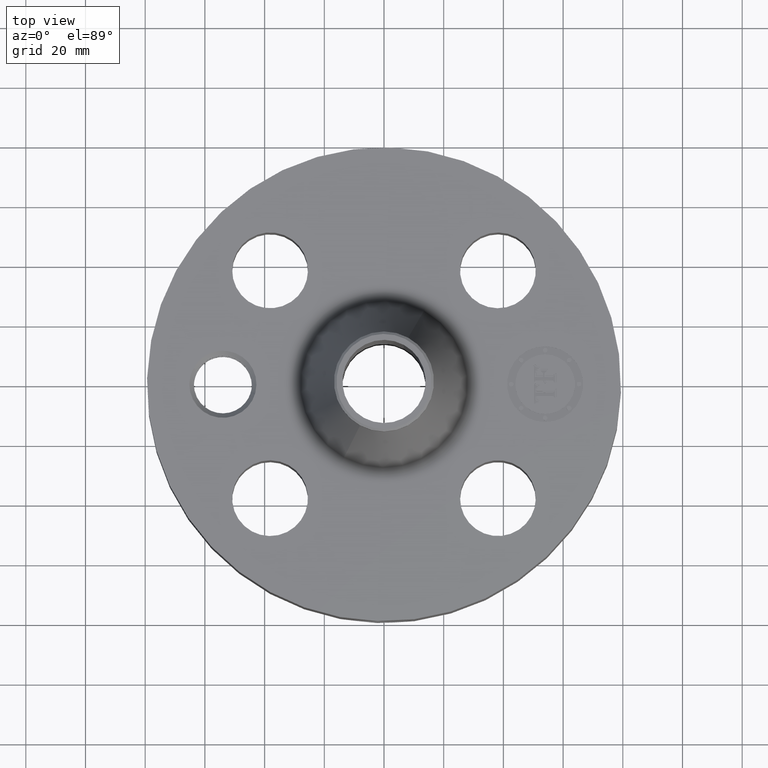
[diagram: clean part render]
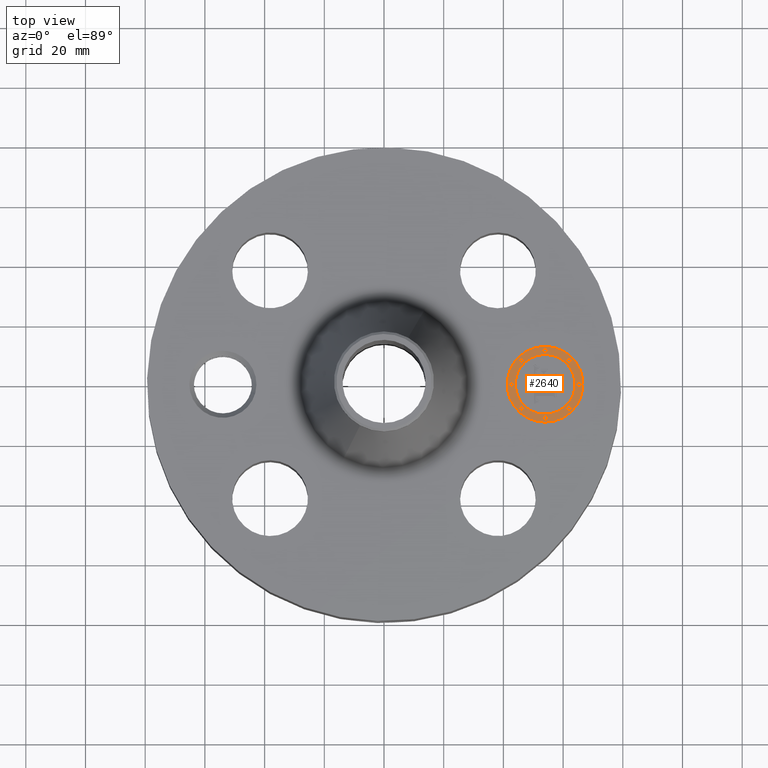
[diagram: same view with one face highlighted and labeled with its STEP entity id]
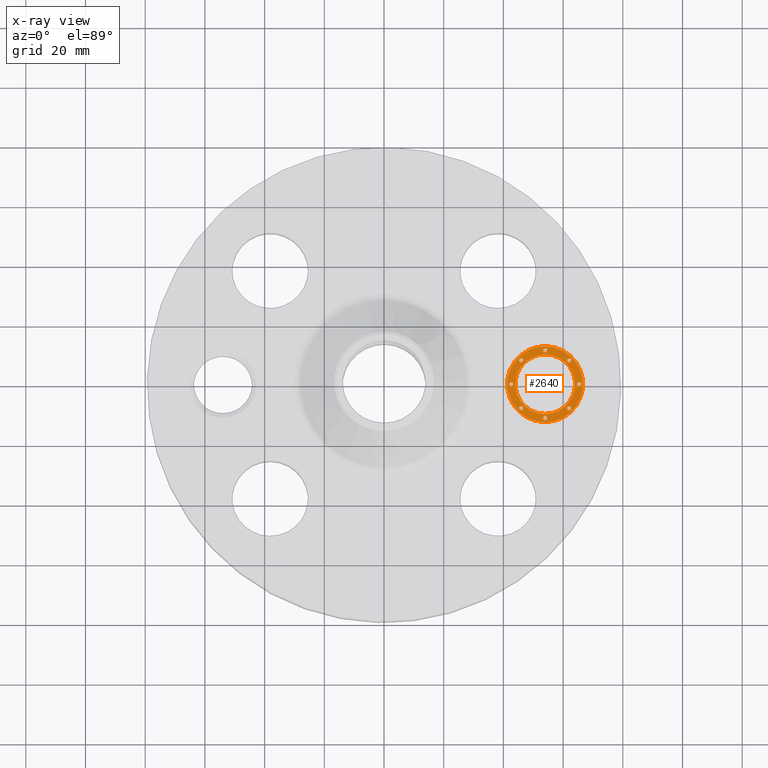
[diagram: x-ray of the same camera — body ghosted, the highlighted face saturated]
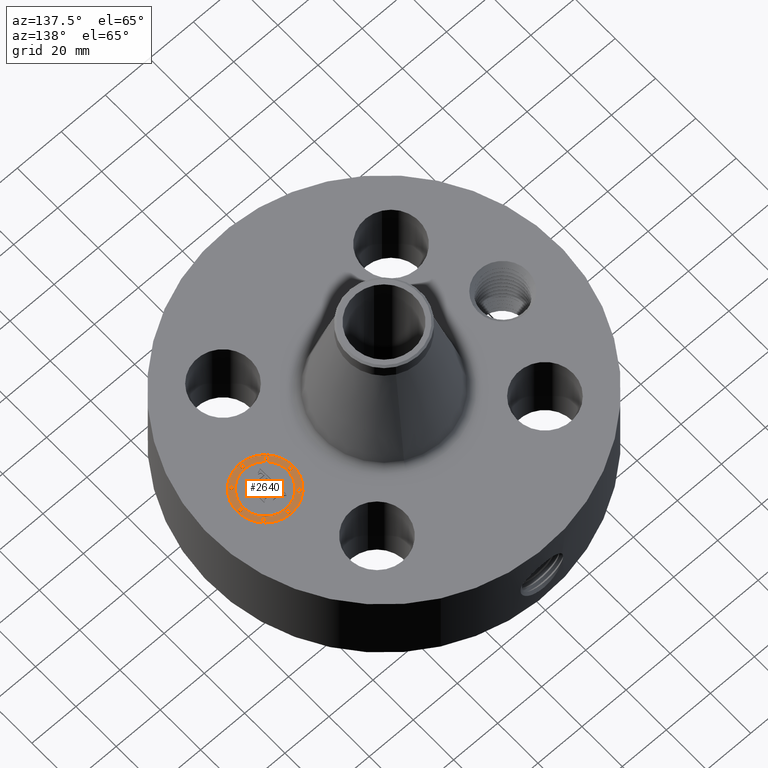
[diagram: same view with one face highlighted and labeled with its STEP entity id]
A machine part, top view. The second image highlights one B-rep face of the part: STEP entity #2640.
The next image is the same camera in x-ray: the body ghosted, the highlighted face saturated — about 0% of this face is hidden behind the body in this view.
A second angle (auxiliary view) of the same face is appended — the face is thin or edge-on in the first view.
In plain terms, the highlighted planar face has unit normal (0, 0, 1).
Its self-contained STEP definition (entity closure, byte-faithful):
#1885=AXIS2_PLACEMENT_3D('Circle Axis2P3D',#1883,#1884,$) ;
#1912=AXIS2_PLACEMENT_3D('Circle Axis2P3D',#1910,#1911,$) ;
#2472=AXIS2_PLACEMENT_3D('Plane Axis2P3D',#2469,#2470,#2471) ;
#2480=AXIS2_PLACEMENT_3D('Circle Axis2P3D',#2478,#2479,$) ;
#2489=AXIS2_PLACEMENT_3D('Circle Axis2P3D',#2487,#2488,$) ;
#2498=AXIS2_PLACEMENT_3D('Circle Axis2P3D',#2496,#2497,$) ;
#2507=AXIS2_PLACEMENT_3D('Circle Axis2P3D',#2505,#2506,$) ;
#2516=AXIS2_PLACEMENT_3D('Circle Axis2P3D',#2514,#2515,$) ;
#2525=AXIS2_PLACEMENT_3D('Circle Axis2P3D',#2523,#2524,$) ;
#2534=AXIS2_PLACEMENT_3D('Circle Axis2P3D',#2532,#2533,$) ;
#2543=AXIS2_PLACEMENT_3D('Circle Axis2P3D',#2541,#2542,$) ;
#2552=AXIS2_PLACEMENT_3D('Circle Axis2P3D',#2550,#2551,$) ;
#2561=AXIS2_PLACEMENT_3D('Circle Axis2P3D',#2559,#2560,$) ;
#2570=AXIS2_PLACEMENT_3D('Circle Axis2P3D',#2568,#2569,$) ;
#2579=AXIS2_PLACEMENT_3D('Circle Axis2P3D',#2577,#2578,$) ;
#2588=AXIS2_PLACEMENT_3D('Circle Axis2P3D',#2586,#2587,$) ;
#2597=AXIS2_PLACEMENT_3D('Circle Axis2P3D',#2595,#2596,$) ;
#2606=AXIS2_PLACEMENT_3D('Circle Axis2P3D',#2604,#2605,$) ;
#2615=AXIS2_PLACEMENT_3D('Circle Axis2P3D',#2613,#2614,$) ;
#2624=AXIS2_PLACEMENT_3D('Circle Axis2P3D',#2622,#2623,$) ;
#2633=AXIS2_PLACEMENT_3D('Circle Axis2P3D',#2631,#2632,$) ;
#1880=CARTESIAN_POINT('Vertex',(2.12500000001,-0.499999995002,1.73500000001)) ;
#1883=CARTESIAN_POINT('Axis2P3D Location',(2.12500000001,-1.06396497731E-014,1.73500000001)) ;
#1887=CARTESIAN_POINT('Vertex',(2.12500000001,0.499999995002,1.73500000001)) ;
#1910=CARTESIAN_POINT('Axis2P3D Location',(2.12500000001,-1.06396497731E-014,1.73500000001)) ;
#2469=CARTESIAN_POINT('Axis2P3D Location',(0.,0.,1.73500000001)) ;
#2478=CARTESIAN_POINT('Axis2P3D Location',(2.12500000001,-1.06396497731E-014,1.73500000001)) ;
#2482=CARTESIAN_POINT('Vertex',(2.12500000001,-0.393939390002,1.73500000001)) ;
#2484=CARTESIAN_POINT('Vertex',(2.12500000001,0.393939390002,1.73500000001)) ;
#2487=CARTESIAN_POINT('Axis2P3D Location',(2.12500000001,-1.06396497731E-014,1.73500000001)) ;
#2496=CARTESIAN_POINT('Axis2P3D Location',(1.67803030751,-1.19112008265E-014,1.73500000001)) ;
#2500=CARTESIAN_POINT('Vertex',(1.67803030751,-0.0303030300001,1.73500000001)) ;
#2502=CARTESIAN_POINT('Vertex',(1.67803030751,0.0303030300001,1.73500000001)) ;
#2505=CARTESIAN_POINT('Axis2P3D Location',(1.67803030751,-1.19112008265E-014,1.73500000001)) ;
#2514=CARTESIAN_POINT('Axis2P3D Location',(2.12500000001,0.446969692502,1.73500000001)) ;
#2518=CARTESIAN_POINT('Vertex',(2.12500000001,0.416666662502,1.73500000001)) ;
#2520=CARTESIAN_POINT('Vertex',(2.12500000001,0.477272722502,1.73500000001)) ;
#2523=CARTESIAN_POINT('Axis2P3D Location',(2.12500000001,0.446969692502,1.73500000001)) ;
#2532=CARTESIAN_POINT('Axis2P3D Location',(1.80894469946,0.316055300553,1.73500000001)) ;
#2536=CARTESIAN_POINT('Vertex',(1.80894469946,0.285752270553,1.73500000001)) ;
#2538=CARTESIAN_POINT('Vertex',(1.80894469946,0.346358330553,1.73500000001)) ;
#2541=CARTESIAN_POINT('Axis2P3D Location',(1.80894469946,0.316055300553,1.73500000001)) ;
#2550=CARTESIAN_POINT('Axis2P3D Location',(2.57196969251,1.08687660854E-015,1.73500000001)) ;
#2554=CARTESIAN_POINT('Vertex',(2.57196969251,-0.0303030300001,1.73500000001)) ;
#2556=CARTESIAN_POINT('Vertex',(2.57196969251,0.0303030300001,1.73500000001)) ;
#2559=CARTESIAN_POINT('Axis2P3D Location',(2.57196969251,1.08687660854E-015,1.73500000001)) ;
#2568=CARTESIAN_POINT('Axis2P3D Location',(2.44105530056,0.316055300553,1.73500000001)) ;
#2572=CARTESIAN_POINT('Vertex',(2.44105530056,0.285752270553,1.73500000001)) ;
#2574=CARTESIAN_POINT('Vertex',(2.44105530056,0.346358330553,1.73500000001)) ;
#2577=CARTESIAN_POINT('Axis2P3D Location',(2.44105530056,0.316055300553,1.73500000001)) ;
#2586=CARTESIAN_POINT('Axis2P3D Location',(2.12500000001,-0.446969692502,1.73500000001)) ;
#2590=CARTESIAN_POINT('Vertex',(2.12500000001,-0.416666662502,1.73500000001)) ;
#2592=CARTESIAN_POINT('Vertex',(2.12500000001,-0.477272722502,1.73500000001)) ;
#2595=CARTESIAN_POINT('Axis2P3D Location',(2.12500000001,-0.446969692502,1.73500000001)) ;
#2604=CARTESIAN_POINT('Axis2P3D Location',(1.80894469946,-0.316055300553,1.73500000001)) ;
#2608=CARTESIAN_POINT('Vertex',(1.80894469946,-0.285752270553,1.73500000001)) ;
#2610=CARTESIAN_POINT('Vertex',(1.80894469946,-0.346358330553,1.73500000001)) ;
#2613=CARTESIAN_POINT('Axis2P3D Location',(1.80894469946,-0.316055300553,1.73500000001)) ;
#2622=CARTESIAN_POINT('Axis2P3D Location',(2.44105530056,-0.316055300553,1.73500000001)) ;
#2626=CARTESIAN_POINT('Vertex',(2.44105530056,-0.285752270553,1.73500000001)) ;
#2628=CARTESIAN_POINT('Vertex',(2.44105530056,-0.346358330553,1.73500000001)) ;
#2631=CARTESIAN_POINT('Axis2P3D Location',(2.44105530056,-0.316055300553,1.73500000001)) ;
#1884=DIRECTION('Axis2P3D Direction',(0.,0.,0.0393700787402)) ;
#1911=DIRECTION('Axis2P3D Direction',(0.,0.,0.0393700787402)) ;
#2470=DIRECTION('Axis2P3D Direction',(0.,0.,0.0393700787402)) ;
#2471=DIRECTION('Axis2P3D XDirection',(0.0393700787402,0.,0.)) ;
#2479=DIRECTION('Axis2P3D Direction',(0.,0.,0.0393700787402)) ;
#2488=DIRECTION('Axis2P3D Direction',(0.,0.,0.0393700787402)) ;
#2497=DIRECTION('Axis2P3D Direction',(0.,0.,0.0393700787402)) ;
#2506=DIRECTION('Axis2P3D Direction',(0.,0.,0.0393700787402)) ;
#2515=DIRECTION('Axis2P3D Direction',(0.,0.,0.0393700787402)) ;
#2524=DIRECTION('Axis2P3D Direction',(0.,0.,0.0393700787402)) ;
#2533=DIRECTION('Axis2P3D Direction',(0.,0.,0.0393700787402)) ;
#2542=DIRECTION('Axis2P3D Direction',(0.,0.,0.0393700787402)) ;
#2551=DIRECTION('Axis2P3D Direction',(0.,0.,0.0393700787402)) ;
#2560=DIRECTION('Axis2P3D Direction',(0.,0.,0.0393700787402)) ;
#2569=DIRECTION('Axis2P3D Direction',(0.,0.,0.0393700787402)) ;
#2578=DIRECTION('Axis2P3D Direction',(0.,0.,0.0393700787402)) ;
#2587=DIRECTION('Axis2P3D Direction',(0.,0.,0.0393700787402)) ;
#2596=DIRECTION('Axis2P3D Direction',(0.,0.,0.0393700787402)) ;
#2605=DIRECTION('Axis2P3D Direction',(0.,0.,0.0393700787402)) ;
#2614=DIRECTION('Axis2P3D Direction',(0.,0.,0.0393700787402)) ;
#2623=DIRECTION('Axis2P3D Direction',(0.,0.,0.0393700787402)) ;
#2632=DIRECTION('Axis2P3D Direction',(0.,0.,0.0393700787402)) ;
#2475=ORIENTED_EDGE('',*,*,#1889,.T.) ;
#2476=ORIENTED_EDGE('',*,*,#1914,.T.) ;
#2493=ORIENTED_EDGE('',*,*,#2486,.F.) ;
#2494=ORIENTED_EDGE('',*,*,#2491,.F.) ;
#2511=ORIENTED_EDGE('',*,*,#2504,.F.) ;
#2512=ORIENTED_EDGE('',*,*,#2509,.F.) ;
#2529=ORIENTED_EDGE('',*,*,#2522,.F.) ;
#2530=ORIENTED_EDGE('',*,*,#2527,.F.) ;
#2547=ORIENTED_EDGE('',*,*,#2540,.F.) ;
#2548=ORIENTED_EDGE('',*,*,#2545,.F.) ;
#2565=ORIENTED_EDGE('',*,*,#2558,.F.) ;
#2566=ORIENTED_EDGE('',*,*,#2563,.F.) ;
#2583=ORIENTED_EDGE('',*,*,#2576,.F.) ;
#2584=ORIENTED_EDGE('',*,*,#2581,.F.) ;
#2601=ORIENTED_EDGE('',*,*,#2594,.F.) ;
#2602=ORIENTED_EDGE('',*,*,#2599,.F.) ;
#2619=ORIENTED_EDGE('',*,*,#2612,.F.) ;
#2620=ORIENTED_EDGE('',*,*,#2617,.F.) ;
#2637=ORIENTED_EDGE('',*,*,#2630,.F.) ;
#2638=ORIENTED_EDGE('',*,*,#2635,.F.) ;
#2495=FACE_BOUND('',#2492,.T.) ;
#2513=FACE_BOUND('',#2510,.T.) ;
#2531=FACE_BOUND('',#2528,.T.) ;
#2549=FACE_BOUND('',#2546,.T.) ;
#2567=FACE_BOUND('',#2564,.T.) ;
#2585=FACE_BOUND('',#2582,.T.) ;
#2603=FACE_BOUND('',#2600,.T.) ;
#2621=FACE_BOUND('',#2618,.T.) ;
#2639=FACE_BOUND('',#2636,.T.) ;
#2640=ADVANCED_FACE('PartBody',(#2477,#2495,#2513,#2531,#2549,#2567,#2585,#2603,#2621,#2639),#2473,.T.) ;
#1886=CIRCLE('generated circle',#1885,0.499999995002) ;
#1913=CIRCLE('generated circle',#1912,0.499999995002) ;
#2481=CIRCLE('generated circle',#2480,0.393939390002) ;
#2490=CIRCLE('generated circle',#2489,0.393939390002) ;
#2499=CIRCLE('generated circle',#2498,0.0303030300001) ;
#2508=CIRCLE('generated circle',#2507,0.0303030300001) ;
#2517=CIRCLE('generated circle',#2516,0.0303030300001) ;
#2526=CIRCLE('generated circle',#2525,0.0303030300001) ;
#2535=CIRCLE('generated circle',#2534,0.0303030300001) ;
#2544=CIRCLE('generated circle',#2543,0.0303030300001) ;
#2553=CIRCLE('generated circle',#2552,0.0303030300001) ;
#2562=CIRCLE('generated circle',#2561,0.0303030300001) ;
#2571=CIRCLE('generated circle',#2570,0.0303030300001) ;
#2580=CIRCLE('generated circle',#2579,0.0303030300001) ;
#2589=CIRCLE('generated circle',#2588,0.0303030300001) ;
#2598=CIRCLE('generated circle',#2597,0.0303030300001) ;
#2607=CIRCLE('generated circle',#2606,0.0303030300001) ;
#2616=CIRCLE('generated circle',#2615,0.0303030300001) ;
#2625=CIRCLE('generated circle',#2624,0.0303030300001) ;
#2634=CIRCLE('generated circle',#2633,0.0303030300001) ;
#1889=EDGE_CURVE('',#1888,#1881,#1886,.T.) ;
#1914=EDGE_CURVE('',#1881,#1888,#1913,.T.) ;
#2486=EDGE_CURVE('',#2483,#2485,#2481,.T.) ;
#2491=EDGE_CURVE('',#2485,#2483,#2490,.T.) ;
#2504=EDGE_CURVE('',#2501,#2503,#2499,.T.) ;
#2509=EDGE_CURVE('',#2503,#2501,#2508,.T.) ;
#2522=EDGE_CURVE('',#2519,#2521,#2517,.T.) ;
#2527=EDGE_CURVE('',#2521,#2519,#2526,.T.) ;
#2540=EDGE_CURVE('',#2537,#2539,#2535,.T.) ;
#2545=EDGE_CURVE('',#2539,#2537,#2544,.T.) ;
#2558=EDGE_CURVE('',#2555,#2557,#2553,.T.) ;
#2563=EDGE_CURVE('',#2557,#2555,#2562,.T.) ;
#2576=EDGE_CURVE('',#2573,#2575,#2571,.T.) ;
#2581=EDGE_CURVE('',#2575,#2573,#2580,.T.) ;
#2594=EDGE_CURVE('',#2591,#2593,#2589,.T.) ;
#2599=EDGE_CURVE('',#2593,#2591,#2598,.T.) ;
#2612=EDGE_CURVE('',#2609,#2611,#2607,.T.) ;
#2617=EDGE_CURVE('',#2611,#2609,#2616,.T.) ;
#2630=EDGE_CURVE('',#2627,#2629,#2625,.T.) ;
#2635=EDGE_CURVE('',#2629,#2627,#2634,.T.) ;
#2474=EDGE_LOOP('',(#2475,#2476)) ;
#2492=EDGE_LOOP('',(#2493,#2494)) ;
#2510=EDGE_LOOP('',(#2511,#2512)) ;
#2528=EDGE_LOOP('',(#2529,#2530)) ;
#2546=EDGE_LOOP('',(#2547,#2548)) ;
#2564=EDGE_LOOP('',(#2565,#2566)) ;
#2582=EDGE_LOOP('',(#2583,#2584)) ;
#2600=EDGE_LOOP('',(#2601,#2602)) ;
#2618=EDGE_LOOP('',(#2619,#2620)) ;
#2636=EDGE_LOOP('',(#2637,#2638)) ;
#2477=FACE_OUTER_BOUND('',#2474,.T.) ;
#2473=PLANE('',#2472) ;
#1881=VERTEX_POINT('',#1880) ;
#1888=VERTEX_POINT('',#1887) ;
#2483=VERTEX_POINT('',#2482) ;
#2485=VERTEX_POINT('',#2484) ;
#2501=VERTEX_POINT('',#2500) ;
#2503=VERTEX_POINT('',#2502) ;
#2519=VERTEX_POINT('',#2518) ;
#2521=VERTEX_POINT('',#2520) ;
#2537=VERTEX_POINT('',#2536) ;
#2539=VERTEX_POINT('',#2538) ;
#2555=VERTEX_POINT('',#2554) ;
#2557=VERTEX_POINT('',#2556) ;
#2573=VERTEX_POINT('',#2572) ;
#2575=VERTEX_POINT('',#2574) ;
#2591=VERTEX_POINT('',#2590) ;
#2593=VERTEX_POINT('',#2592) ;
#2609=VERTEX_POINT('',#2608) ;
#2611=VERTEX_POINT('',#2610) ;
#2627=VERTEX_POINT('',#2626) ;
#2629=VERTEX_POINT('',#2628) ;